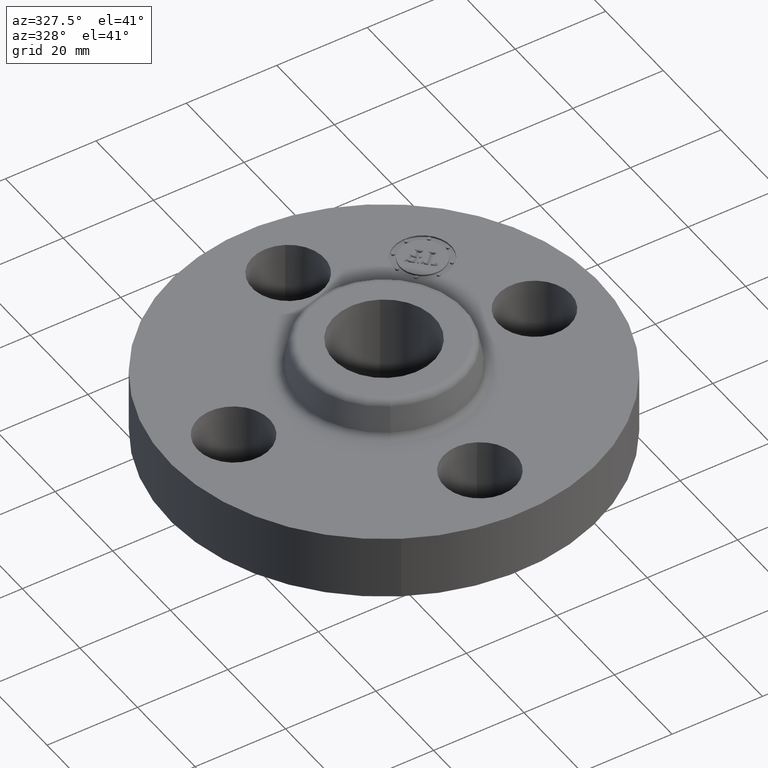
[diagram: clean part render]
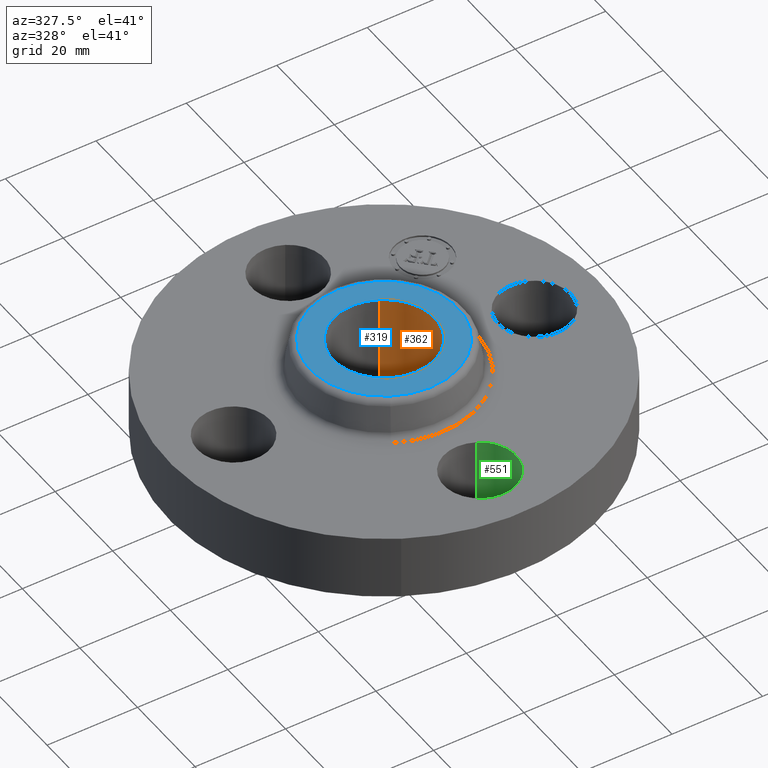
[diagram: same view with three faces highlighted in distinct colors, each labeled with its STEP entity id]
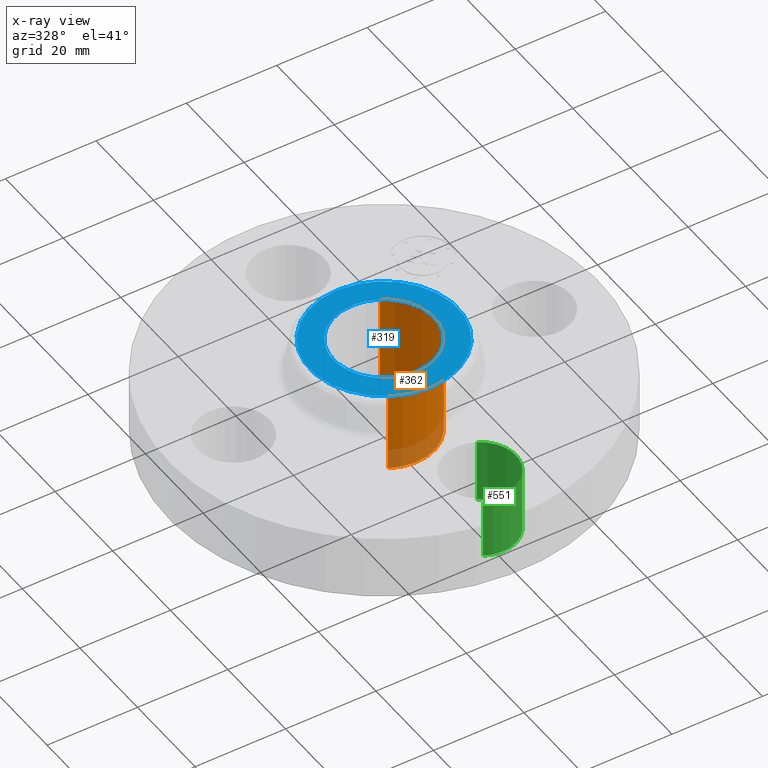
[diagram: x-ray of the same camera — body ghosted, the three highlighted faces saturated]
A machine part, auxiliary view with three faces highlighted in distinct colors.
The next image is the same camera in x-ray (body ghosted, the three faces saturated) — at least one of them is partly hidden behind the body in this view.
Their STEP definitions:

[orange] entity #362 — the highlighted cylindrical surface (partial cylindrical patch) has radius 11.176 mm, axis along (0, 0, -1).
#312=AXIS2_PLACEMENT_3D('Circle Axis2P3D',#310,#311,$) ;
#323=AXIS2_PLACEMENT_3D('Cylinder Axis2P3D',#320,#321,#322) ;
#353=AXIS2_PLACEMENT_3D('Circle Axis2P3D',#351,#352,$) ;
#305=CARTESIAN_POINT('Vertex',(-0.210947236987,-0.386136327233,0.880000000004)) ;
#307=CARTESIAN_POINT('Vertex',(0.210947236987,0.386136327233,0.880000000004)) ;
#310=CARTESIAN_POINT('Axis2P3D Location',(0.,0.,0.880000000004)) ;
#320=CARTESIAN_POINT('Axis2P3D Location',(0.,0.,0.440000000002)) ;
#325=CARTESIAN_POINT('Line Origine',(-0.210947236987,-0.386136327233,0.440000000002)) ;
#329=CARTESIAN_POINT('Vertex',(-0.210947236987,-0.386136327233,-7.83275456743E-015)) ;
#336=CARTESIAN_POINT('Vertex',(0.210947236987,0.386136327233,-7.83275456743E-015)) ;
#339=CARTESIAN_POINT('Line Origine',(0.210947236987,0.386136327233,0.440000000002)) ;
#351=CARTESIAN_POINT('Axis2P3D Location',(0.,0.,-7.83275456743E-015)) ;
#311=DIRECTION('Axis2P3D Direction',(0.,0.,-0.0393700787402)) ;
#321=DIRECTION('Axis2P3D Direction',(0.,0.,-0.0393700787402)) ;
#322=DIRECTION('Axis2P3D XDirection',(0.0188750212049,0.0345504945626,0.)) ;
#326=DIRECTION('Vector Direction',(0.,0.,-0.0393700787402)) ;
#340=DIRECTION('Vector Direction',(0.,0.,-0.0393700787402)) ;
#352=DIRECTION('Axis2P3D Direction',(0.,0.,-0.0393700787402)) ;
#327=VECTOR('Line Direction',#326,0.0393700787402) ;
#341=VECTOR('Line Direction',#340,0.0393700787402) ;
#357=ORIENTED_EDGE('',*,*,#314,.F.) ;
#358=ORIENTED_EDGE('',*,*,#343,.T.) ;
#359=ORIENTED_EDGE('',*,*,#355,.T.) ;
#360=ORIENTED_EDGE('',*,*,#331,.F.) ;
#362=ADVANCED_FACE('PartBody',(#361),#324,.F.) ;
#313=CIRCLE('generated circle',#312,0.440000000002) ;
#354=CIRCLE('generated circle',#353,0.440000000002) ;
#324=CYLINDRICAL_SURFACE('generated cylinder',#323,0.440000000002) ;
#314=EDGE_CURVE('',#308,#306,#313,.T.) ;
#331=EDGE_CURVE('',#306,#330,#328,.T.) ;
#343=EDGE_CURVE('',#308,#337,#342,.T.) ;
#355=EDGE_CURVE('',#337,#330,#354,.T.) ;
#356=EDGE_LOOP('',(#357,#358,#359,#360)) ;
#361=FACE_OUTER_BOUND('',#356,.T.) ;
#328=LINE('Line',#325,#327) ;
#342=LINE('Line',#339,#341) ;
#306=VERTEX_POINT('',#305) ;
#308=VERTEX_POINT('',#307) ;
#330=VERTEX_POINT('',#329) ;
#337=VERTEX_POINT('',#336) ;

[blue] entity #319 — the highlighted planar face has unit normal (0, 0, -1).
#263=AXIS2_PLACEMENT_3D('Circle Axis2P3D',#261,#262,$) ;
#282=AXIS2_PLACEMENT_3D('Circle Axis2P3D',#280,#281,$) ;
#295=AXIS2_PLACEMENT_3D('Plane Axis2P3D',#292,#293,#294) ;
#303=AXIS2_PLACEMENT_3D('Circle Axis2P3D',#301,#302,$) ;
#312=AXIS2_PLACEMENT_3D('Circle Axis2P3D',#310,#311,$) ;
#258=CARTESIAN_POINT('Vertex',(0.308380595934,0.564486894472,0.880000000004)) ;
#261=CARTESIAN_POINT('Axis2P3D Location',(0.,0.,0.880000000004)) ;
#265=CARTESIAN_POINT('Vertex',(-0.308380595934,-0.564486894472,0.880000000004)) ;
#280=CARTESIAN_POINT('Axis2P3D Location',(0.,0.,0.880000000004)) ;
#292=CARTESIAN_POINT('Axis2P3D Location',(0.,0.643229388305,0.880000000004)) ;
#301=CARTESIAN_POINT('Axis2P3D Location',(0.,0.,0.880000000004)) ;
#305=CARTESIAN_POINT('Vertex',(-0.210947236987,-0.386136327233,0.880000000004)) ;
#307=CARTESIAN_POINT('Vertex',(0.210947236987,0.386136327233,0.880000000004)) ;
#310=CARTESIAN_POINT('Axis2P3D Location',(0.,0.,0.880000000004)) ;
#262=DIRECTION('Axis2P3D Direction',(0.,0.,-0.0393700787402)) ;
#281=DIRECTION('Axis2P3D Direction',(0.,0.,-0.0393700787402)) ;
#293=DIRECTION('Axis2P3D Direction',(0.,0.,-0.0393700787402)) ;
#294=DIRECTION('Axis2P3D XDirection',(0.0393700787402,0.,0.)) ;
#302=DIRECTION('Axis2P3D Direction',(0.,0.,-0.0393700787402)) ;
#311=DIRECTION('Axis2P3D Direction',(0.,0.,-0.0393700787402)) ;
#298=ORIENTED_EDGE('',*,*,#267,.F.) ;
#299=ORIENTED_EDGE('',*,*,#284,.F.) ;
#316=ORIENTED_EDGE('',*,*,#309,.T.) ;
#317=ORIENTED_EDGE('',*,*,#314,.T.) ;
#318=FACE_BOUND('',#315,.T.) ;
#319=ADVANCED_FACE('PartBody',(#300,#318),#296,.F.) ;
#264=CIRCLE('generated circle',#263,0.643229388305) ;
#283=CIRCLE('generated circle',#282,0.643229388305) ;
#304=CIRCLE('generated circle',#303,0.440000000002) ;
#313=CIRCLE('generated circle',#312,0.440000000002) ;
#267=EDGE_CURVE('',#259,#266,#264,.T.) ;
#284=EDGE_CURVE('',#266,#259,#283,.T.) ;
#309=EDGE_CURVE('',#306,#308,#304,.T.) ;
#314=EDGE_CURVE('',#308,#306,#313,.T.) ;
#297=EDGE_LOOP('',(#298,#299)) ;
#315=EDGE_LOOP('',(#316,#317)) ;
#300=FACE_OUTER_BOUND('',#297,.T.) ;
#296=PLANE('',#295) ;
#259=VERTEX_POINT('',#258) ;
#266=VERTEX_POINT('',#265) ;
#306=VERTEX_POINT('',#305) ;
#308=VERTEX_POINT('',#307) ;

[green] entity #551 — the highlighted cylindrical surface (partial cylindrical patch) has radius 8.001 mm, axis along (0, -0, -1).
#382=AXIS2_PLACEMENT_3D('Circle Axis2P3D',#380,#381,$) ;
#524=AXIS2_PLACEMENT_3D('Cylinder Axis2P3D',#521,#522,#523) ;
#542=AXIS2_PLACEMENT_3D('Circle Axis2P3D',#540,#541,$) ;
#380=CARTESIAN_POINT('Axis2P3D Location',(-1.04902962957E-016,-1.31000000001,0.)) ;
#384=CARTESIAN_POINT('Vertex',(0.151019044661,-1.03356149301,0.)) ;
#386=CARTESIAN_POINT('Vertex',(-0.151019044661,-1.586438507,0.)) ;
#521=CARTESIAN_POINT('Axis2P3D Location',(-1.99526869207E-016,-1.31000000001,0.556062992128)) ;
#526=CARTESIAN_POINT('Line Origine',(0.151019044661,-1.03356149301,0.280000000001)) ;
#530=CARTESIAN_POINT('Vertex',(0.151019044661,-1.03356149301,0.560000000002)) ;
#533=CARTESIAN_POINT('Line Origine',(-0.151019044661,-1.586438507,0.280000000001)) ;
#537=CARTESIAN_POINT('Vertex',(-0.151019044661,-1.586438507,0.560000000002)) ;
#540=CARTESIAN_POINT('Axis2P3D Location',(-1.99526869207E-016,-1.31000000001,0.560000000002)) ;
#381=DIRECTION('Axis2P3D Direction',(0.,0.,-0.0393700787402)) ;
#522=DIRECTION('Axis2P3D Direction',(0.,-0.,-0.0393700787402)) ;
#523=DIRECTION('Axis2P3D XDirection',(-0.0188750212049,-0.0345504945626,0.)) ;
#527=DIRECTION('Vector Direction',(0.,0.,-0.0393700787402)) ;
#534=DIRECTION('Vector Direction',(0.,0.,-0.0393700787402)) ;
#541=DIRECTION('Axis2P3D Direction',(0.,-0.,-0.0393700787402)) ;
#528=VECTOR('Line Direction',#527,0.0393700787402) ;
#535=VECTOR('Line Direction',#534,0.0393700787402) ;
#546=ORIENTED_EDGE('',*,*,#532,.F.) ;
#547=ORIENTED_EDGE('',*,*,#388,.T.) ;
#548=ORIENTED_EDGE('',*,*,#539,.T.) ;
#549=ORIENTED_EDGE('',*,*,#544,.F.) ;
#551=ADVANCED_FACE('PartBody',(#550),#525,.F.) ;
#383=CIRCLE('generated circle',#382,0.315000000001) ;
#543=CIRCLE('generated circle',#542,0.315000000001) ;
#525=CYLINDRICAL_SURFACE('generated cylinder',#524,0.315000000001) ;
#388=EDGE_CURVE('',#385,#387,#383,.T.) ;
#532=EDGE_CURVE('',#385,#531,#529,.F.) ;
#539=EDGE_CURVE('',#387,#538,#536,.F.) ;
#544=EDGE_CURVE('',#531,#538,#543,.T.) ;
#545=EDGE_LOOP('',(#546,#547,#548,#549)) ;
#550=FACE_OUTER_BOUND('',#545,.T.) ;
#529=LINE('Line',#526,#528) ;
#536=LINE('Line',#533,#535) ;
#385=VERTEX_POINT('',#384) ;
#387=VERTEX_POINT('',#386) ;
#531=VERTEX_POINT('',#530) ;
#538=VERTEX_POINT('',#537) ;